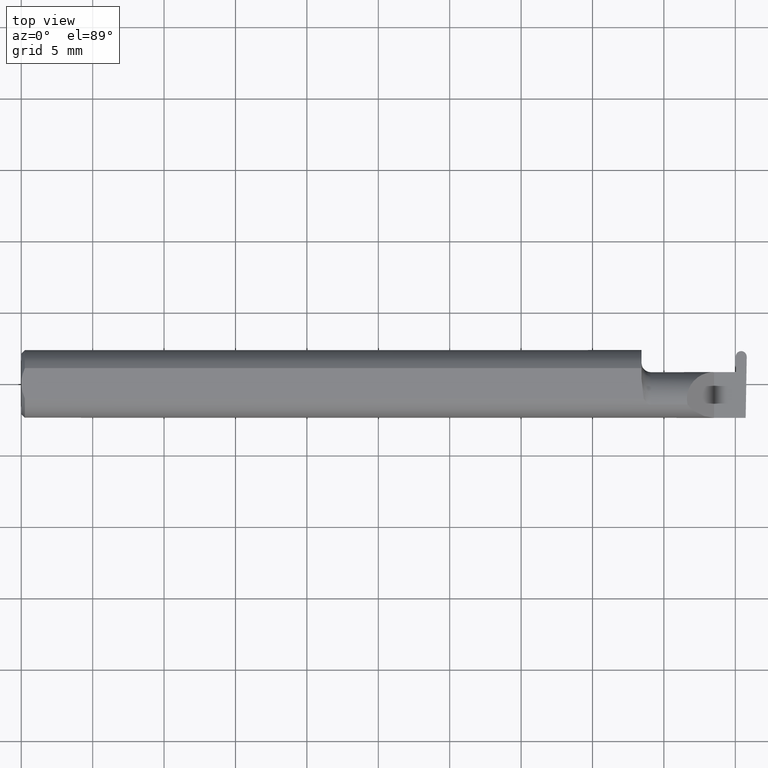
[diagram: clean part render]
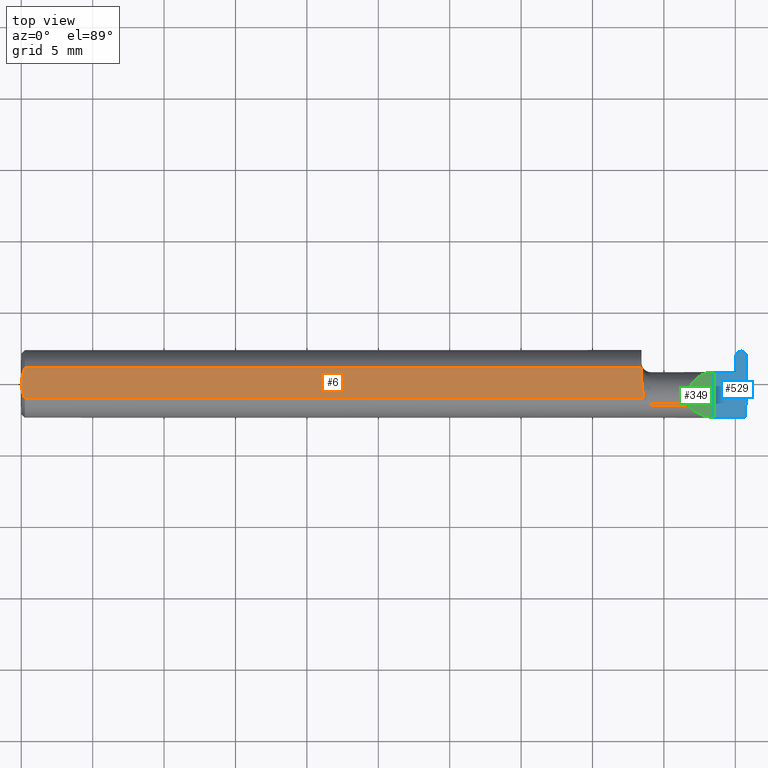
[diagram: same view with three faces highlighted in distinct colors, each labeled with its STEP entity id]
A machine part, top view with three faces highlighted in distinct colors.
Their STEP definitions:

[orange] entity #6 — the highlighted planar face has unit normal (0, 0, 1).
#3 = CARTESIAN_POINT ( 'NONE',  ( 1.709999999999999964, 0.04209513035969864037, 0.08359999999999988274 ) ) ;
#6 = ADVANCED_FACE ( 'NONE', ( #462 ), #147, .T. ) ;
#10 = CARTESIAN_POINT ( 'NONE',  ( 0.01000000000000016674, 0.04209513035969864037, 0.08359999999999988274 ) ) ;
#15 = CARTESIAN_POINT ( 'NONE',  ( 0.000000000000000000, -0.04209513035969864037, 0.08359999999999988274 ) ) ;
#16 = CARTESIAN_POINT ( 'NONE',  ( 0.01000000000000016674, -0.04209513035969864037, 0.08359999999999988274 ) ) ;
#18 = CARTESIAN_POINT ( 'NONE',  ( 1.714570820222980574, -0.02392027542784315106, 0.08359999999999992437 ) ) ;
#28 = ORIENTED_EDGE ( 'NONE', *, *, #610, .T. ) ;
#30 = DIRECTION ( 'NONE',  ( 0.000000000000000000, 0.000000000000000000, 1.000000000000000000 ) ) ;
#38 = VERTEX_POINT ( 'NONE', #403 ) ;
#69 = B_SPLINE_CURVE_WITH_KNOTS ( 'NONE', 3,
 ( #228, #596, #608, #402, #652, #286 ),
 .UNSPECIFIED., .F., .F.,
 ( 4, 2, 4 ),
 ( 0.001744210492668864416, 0.002295110172257193264, 0.002846009851845522111 ),
 .UNSPECIFIED. ) ;
#75 = B_SPLINE_CURVE_WITH_KNOTS ( 'NONE', 3,
 ( #339, #274, #18, #270, #449, #231 ),
 .UNSPECIFIED., .F., .F.,
 ( 4, 2, 4 ),
 ( 0.009672910729349544143, 0.01035804079918431486, 0.01104317086901908385 ),
 .UNSPECIFIED. ) ;
#78 = CARTESIAN_POINT ( 'NONE',  ( 0.004072204388638868758, -0.02891446873729324601, 0.08359999999999991049 ) ) ;
#81 = EDGE_CURVE ( 'NONE', #38, #535, #87, .T. ) ;
#87 = LINE ( 'NONE', #197, #660 ) ;
#143 = CARTESIAN_POINT ( 'NONE',  ( 0.000000000000000000, 0.000000000000000000, 0.08359999999999991049 ) ) ;
#147 = PLANE ( 'NONE',  #263 ) ;
#149 = VERTEX_POINT ( 'NONE', #372 ) ;
#186 = DIRECTION ( 'NONE',  ( 1.000000000000000000, 0.000000000000000000, -0.000000000000000000 ) ) ;
#191 = ORIENTED_EDGE ( 'NONE', *, *, #670, .F. ) ;
#197 = CARTESIAN_POINT ( 'NONE',  ( 1.709999999999999964, 0.09359999999999997489, 0.08359999999999991049 ) ) ;
#201 = VECTOR ( 'NONE', #275, 39.37007874015748143 ) ;
#203 = ORIENTED_EDGE ( 'NONE', *, *, #249, .T. ) ;
#228 = CARTESIAN_POINT ( 'NONE',  ( 0.000000000000000000, 0.000000000000000000, 0.08359999999999991049 ) ) ;
#231 = CARTESIAN_POINT ( 'NONE',  ( 1.709999999999999964, 0.01227294415283377085, 0.08359999999999991049 ) ) ;
#237 = VERTEX_POINT ( 'NONE', #16 ) ;
#249 = EDGE_CURVE ( 'NONE', #535, #631, #450, .T. ) ;
#263 = AXIS2_PLACEMENT_3D ( 'NONE', #569, #30, #186 ) ;
#270 = CARTESIAN_POINT ( 'NONE',  ( 1.711463898467977307, -0.005727447913487191365, 0.08359999999999991049 ) ) ;
#274 = CARTESIAN_POINT ( 'NONE',  ( 1.716082007218903582, -0.03301619840524120525, 0.08359999999999991049 ) ) ;
#275 = DIRECTION ( 'NONE',  ( -1.000000000000000000, -0.000000000000000000, -0.000000000000000000 ) ) ;
#286 = CARTESIAN_POINT ( 'NONE',  ( 0.01000000000000016674, 0.04209513035969864037, 0.08359999999999988274 ) ) ;
#294 = DIRECTION ( 'NONE',  ( -1.645101957906638708E-16, 1.000000000000000000, 0.000000000000000000 ) ) ;
#300 = ORIENTED_EDGE ( 'NONE', *, *, #665, .F. ) ;
#332 = VECTOR ( 'NONE', #393, 39.37007874015748143 ) ;
#339 = CARTESIAN_POINT ( 'NONE',  ( 1.716129652885479473, -0.04209513035970119388, 0.08359999999999991049 ) ) ;
#342 = CARTESIAN_POINT ( 'NONE',  ( 0.01000000000000016674, -0.04209513035969864037, 0.08359999999999988274 ) ) ;
#357 = B_SPLINE_CURVE_WITH_KNOTS ( 'NONE', 3,
 ( #342, #78, #458, #667 ),
 .UNSPECIFIED., .F., .F.,
 ( 4, 4 ),
 ( 0.0006429768761302093617, 0.001744210492668864416 ),
 .UNSPECIFIED. ) ;
#360 = ORIENTED_EDGE ( 'NONE', *, *, #81, .T. ) ;
#372 = CARTESIAN_POINT ( 'NONE',  ( 1.716129652885479473, -0.04209513035970119388, 0.08359999999999991049 ) ) ;
#373 = VERTEX_POINT ( 'NONE', #143 ) ;
#384 = CARTESIAN_POINT ( 'NONE',  ( 0.000000000000000000, 0.04209513035969864037, 0.08359999999999988274 ) ) ;
#393 = DIRECTION ( 'NONE',  ( 1.000000000000000000, 0.000000000000000000, 0.000000000000000000 ) ) ;
#402 = CARTESIAN_POINT ( 'NONE',  ( 0.004492168231814808177, 0.02859366993844194779, 0.08359999999999991049 ) ) ;
#403 = CARTESIAN_POINT ( 'NONE',  ( 1.709999999999999964, 0.01227294415283377085, 0.08359999999999991049 ) ) ;
#407 = EDGE_LOOP ( 'NONE', ( #552, #28, #360, #203, #191, #300 ) ) ;
#449 = CARTESIAN_POINT ( 'NONE',  ( 1.709999999999999964, 0.003280657920457339012, 0.08359999999999991049 ) ) ;
#450 = LINE ( 'NONE', #384, #201 ) ;
#458 = CARTESIAN_POINT ( 'NONE',  ( 2.387527623501553705E-17, -0.01462709520273675068, 0.08359999999999991049 ) ) ;
#462 = FACE_OUTER_BOUND ( 'NONE', #407, .T. ) ;
#497 = LINE ( 'NONE', #15, #332 ) ;
#535 = VERTEX_POINT ( 'NONE', #3 ) ;
#552 = ORIENTED_EDGE ( 'NONE', *, *, #632, .T. ) ;
#569 = CARTESIAN_POINT ( 'NONE',  ( 2.191425808082400728, 0.09360000000000005815, 0.08359999999999991049 ) ) ;
#596 = CARTESIAN_POINT ( 'NONE',  ( 2.476070721796526867E-17, 0.007317304829308955878, 0.08359999999999991049 ) ) ;
#608 = CARTESIAN_POINT ( 'NONE',  ( 0.0009807498324118613890, 0.01453516766257752398, 0.08359999999999992437 ) ) ;
#610 = EDGE_CURVE ( 'NONE', #149, #38, #75, .T. ) ;
#631 = VERTEX_POINT ( 'NONE', #10 ) ;
#632 = EDGE_CURVE ( 'NONE', #237, #149, #497, .T. ) ;
#652 = CARTESIAN_POINT ( 'NONE',  ( 0.007036739039485840133, 0.03550621559607060329, 0.08359999999999991049 ) ) ;
#660 = VECTOR ( 'NONE', #294, 39.37007874015748143 ) ;
#665 = EDGE_CURVE ( 'NONE', #237, #373, #357, .T. ) ;
#667 = CARTESIAN_POINT ( 'NONE',  ( 0.000000000000000000, 0.000000000000000000, 0.08359999999999991049 ) ) ;
#670 = EDGE_CURVE ( 'NONE', #373, #631, #69, .T. ) ;

[blue] entity #529 — the highlighted planar face has unit normal (-0, 0, -1).
#1 = CARTESIAN_POINT ( 'NONE',  ( 1.984528753945016932, 0.09039999999999999425, 0.000000000000000000 ) ) ;
#4 = CARTESIAN_POINT ( 'NONE',  ( 1.969483699970306922, 0.07409901316683066563, 0.000000000000000000 ) ) ;
#22 = LINE ( 'NONE', #503, #505 ) ;
#36 = CARTESIAN_POINT ( 'NONE',  ( 1.709999999999999964, 0.03239999999999998437, 3.551475717527338624E-17 ) ) ;
#40 = VERTEX_POINT ( 'NONE', #527 ) ;
#45 =( BOUNDED_CURVE ( )  B_SPLINE_CURVE ( 3, ( #298, #252, #413, #194 ),
 .UNSPECIFIED., .F., .T. ) 
 B_SPLINE_CURVE_WITH_KNOTS ( ( 4, 4 ),
 ( 1.672436806532649367, 3.247686724355375087 ),
 .UNSPECIFIED. ) 
 CURVE ( )  GEOMETRIC_REPRESENTATION_ITEM ( )  RATIONAL_B_SPLINE_CURVE ( ( 1.000000000000000000, 0.8036869647627066238, 0.8036869647627066238, 1.000000000000000000 ) ) 
 REPRESENTATION_ITEM ( '' )  );
#63 = EDGE_CURVE ( 'NONE', #541, #618, #140, .T. ) ;
#86 = DIRECTION ( 'NONE',  ( -0.01745240643727633684, -0.9998476951563912696, 0.000000000000000000 ) ) ;
#105 = DIRECTION ( 'NONE',  ( -1.000000000000000000, 0.000000000000000000, 1.224646799147358877E-16 ) ) ;
#140 = LINE ( 'NONE', #562, #452 ) ;
#144 = DIRECTION ( 'NONE',  ( 1.000000000000000000, -0.000000000000000000, -0.000000000000000000 ) ) ;
#146 = DIRECTION ( 'NONE',  ( 1.000000000000000000, 1.645101957906638708E-16, 0.000000000000000000 ) ) ;
#151 = ORIENTED_EDGE ( 'NONE', *, *, #442, .F. ) ;
#157 = LINE ( 'NONE', #536, #475 ) ;
#159 = CARTESIAN_POINT ( 'NONE',  ( 1.970211558952576159, 0.03239999999999999825, 0.000000000000000000 ) ) ;
#168 = EDGE_CURVE ( 'NONE', #210, #40, #214, .T. ) ;
#172 = EDGE_CURVE ( 'NONE', #541, #304, #643, .T. ) ;
#173 = DIRECTION ( 'NONE',  ( -0.000000000000000000, 1.000000000000000000, -0.000000000000000000 ) ) ;
#181 = ORIENTED_EDGE ( 'NONE', *, *, #386, .T. ) ;
#194 = CARTESIAN_POINT ( 'NONE',  ( 1.984939206054983751, 0.09039999999999999425, 0.000000000000000000 ) ) ;
#208 = DIRECTION ( 'NONE',  ( -0.01745240643727647215, 0.9998476951563912696, -0.000000000000000000 ) ) ;
#210 = VERTEX_POINT ( 'NONE', #692 ) ;
#214 = LINE ( 'NONE', #159, #320 ) ;
#247 = FACE_OUTER_BOUND ( 'NONE', #482, .T. ) ;
#252 = CARTESIAN_POINT ( 'NONE',  ( 2.000150782537319483, 0.08363908123938845751, -1.889248031255481802E-18 ) ) ;
#255 = DIRECTION ( 'NONE',  ( -1.224646799147358877E-16, 0.000000000000000000, -1.000000000000000000 ) ) ;
#262 = ORIENTED_EDGE ( 'NONE', *, *, #401, .F. ) ;
#273 = VECTOR ( 'NONE', #146, 39.37007874015748143 ) ;
#281 = CARTESIAN_POINT ( 'NONE',  ( 1.984939206054983751, 0.09039999999999999425, 0.000000000000000000 ) ) ;
#283 = AXIS2_PLACEMENT_3D ( 'NONE', #306, #255, #105 ) ;
#284 = VERTEX_POINT ( 'NONE', #340 ) ;
#288 = VERTEX_POINT ( 'NONE', #597 ) ;
#295 = CARTESIAN_POINT ( 'NONE',  ( 2.999519565323742037E-32, -0.09359999999999998876, 2.449293598294716768E-16 ) ) ;
#298 = CARTESIAN_POINT ( 'NONE',  ( 1.999984260029693539, 0.07409901316683065176, 0.000000000000000000 ) ) ;
#304 = VERTEX_POINT ( 'NONE', #329 ) ;
#306 = CARTESIAN_POINT ( 'NONE',  ( 2.000000000000000000, -0.2500000000000000555, 0.000000000000000000 ) ) ;
#320 = VECTOR ( 'NONE', #427, 39.37007874015748143 ) ;
#329 = CARTESIAN_POINT ( 'NONE',  ( 1.969483699970306922, 0.07409901316683066563, 0.000000000000000000 ) ) ;
#340 = CARTESIAN_POINT ( 'NONE',  ( 1.997057062866469668, -0.09360000000000001652, 0.000000000000000000 ) ) ;
#352 = DIRECTION ( 'NONE',  ( -1.000000000000000000, -0.000000000000000000, -0.000000000000000000 ) ) ;
#368 = ORIENTED_EDGE ( 'NONE', *, *, #647, .F. ) ;
#386 = EDGE_CURVE ( 'NONE', #395, #618, #45, .T. ) ;
#395 = VERTEX_POINT ( 'NONE', #518 ) ;
#401 = EDGE_CURVE ( 'NONE', #284, #698, #524, .T. ) ;
#409 = LINE ( 'NONE', #36, #273 ) ;
#413 = CARTESIAN_POINT ( 'NONE',  ( 1.993910768437985759, 0.09039999999999996649, -1.125066701917155339E-18 ) ) ;
#418 = EDGE_CURVE ( 'NONE', #288, #210, #409, .T. ) ;
#427 = DIRECTION ( 'NONE',  ( 1.000000000000000000, 7.099522513569870101E-16, -0.000000000000000000 ) ) ;
#431 = CARTESIAN_POINT ( 'NONE',  ( 1.975557191562014703, 0.09039999999999998037, 1.125066701917154376E-18 ) ) ;
#434 = CARTESIAN_POINT ( 'NONE',  ( 1.984528753945016932, 0.09039999999999999425, 0.000000000000000000 ) ) ;
#442 = EDGE_CURVE ( 'NONE', #395, #284, #572, .T. ) ;
#452 = VECTOR ( 'NONE', #144, 39.37007874015748143 ) ;
#457 = ORIENTED_EDGE ( 'NONE', *, *, #63, .F. ) ;
#475 = VECTOR ( 'NONE', #208, 39.37007874015748143 ) ;
#482 = EDGE_LOOP ( 'NONE', ( #457, #695, #540, #513, #585, #368, #262, #151, #181 ) ) ;
#488 = CARTESIAN_POINT ( 'NONE',  ( 1.969317177462681423, 0.08363908123938847139, 1.889248031255481417E-18 ) ) ;
#503 = CARTESIAN_POINT ( 'NONE',  ( 1.910000000000000142, -0.2500000000000000555, 1.102182119232621301E-17 ) ) ;
#505 = VECTOR ( 'NONE', #173, 39.37007874015748143 ) ;
#513 = ORIENTED_EDGE ( 'NONE', *, *, #168, .F. ) ;
#518 = CARTESIAN_POINT ( 'NONE',  ( 1.999984260029693539, 0.07409901316683065176, 0.000000000000000000 ) ) ;
#520 = VECTOR ( 'NONE', #86, 39.37007874015748143 ) ;
#524 = LINE ( 'NONE', #295, #578 ) ;
#527 = CARTESIAN_POINT ( 'NONE',  ( 1.970211558952576159, 0.03239999999999999825, 0.000000000000000000 ) ) ;
#529 = ADVANCED_FACE ( 'NONE', ( #247 ), #682, .F. ) ;
#530 = EDGE_CURVE ( 'NONE', #40, #304, #157, .T. ) ;
#536 = CARTESIAN_POINT ( 'NONE',  ( 1.969470285088788852, 0.07486755121428030624, 0.000000000000000000 ) ) ;
#540 = ORIENTED_EDGE ( 'NONE', *, *, #530, .F. ) ;
#541 = VERTEX_POINT ( 'NONE', #434 ) ;
#562 = CARTESIAN_POINT ( 'NONE',  ( -3.937007874019685528E-05, 0.09039999999999999425, 0.000000000000000000 ) ) ;
#563 = CARTESIAN_POINT ( 'NONE',  ( 1.999997674911211609, 0.07486755121428030624, 0.000000000000000000 ) ) ;
#572 = LINE ( 'NONE', #563, #520 ) ;
#578 = VECTOR ( 'NONE', #352, 39.37007874015748143 ) ;
#585 = ORIENTED_EDGE ( 'NONE', *, *, #418, .F. ) ;
#597 = CARTESIAN_POINT ( 'NONE',  ( 1.910000000000000142, 0.03240000000000001906, 3.551475717527338624E-17 ) ) ;
#618 = VERTEX_POINT ( 'NONE', #281 ) ;
#643 =( BOUNDED_CURVE ( )  B_SPLINE_CURVE ( 3, ( #1, #431, #488, #4 ),
 .UNSPECIFIED., .F., .F. ) 
 B_SPLINE_CURVE_WITH_KNOTS ( ( 4, 4 ),
 ( 6.177091236414002928, 7.752341154236729537 ),
 .UNSPECIFIED. ) 
 CURVE ( )  GEOMETRIC_REPRESENTATION_ITEM ( )  RATIONAL_B_SPLINE_CURVE ( ( 1.000000000000000000, 0.8036869647627065127, 0.8036869647627065127, 1.000000000000000000 ) ) 
 REPRESENTATION_ITEM ( '' )  );
#647 = EDGE_CURVE ( 'NONE', #698, #288, #22, .T. ) ;
#675 = CARTESIAN_POINT ( 'NONE',  ( 1.910000000000000142, -0.09360000000000005815, 1.102182119232621301E-17 ) ) ;
#682 = PLANE ( 'NONE',  #283 ) ;
#692 = CARTESIAN_POINT ( 'NONE',  ( 1.964199165186739648, 0.03239999999999999825, 0.000000000000000000 ) ) ;
#695 = ORIENTED_EDGE ( 'NONE', *, *, #172, .T. ) ;
#698 = VERTEX_POINT ( 'NONE', #675 ) ;

[green] entity #349 — the highlighted planar face has unit normal (-0.7071, 0, -0.7071).
#7 = CARTESIAN_POINT ( 'NONE',  ( 1.910000000000000142, 0.03240000000000001906, 3.551475717527338624E-17 ) ) ;
#22 = LINE ( 'NONE', #503, #505 ) ;
#49 = ORIENTED_EDGE ( 'NONE', *, *, #213, .F. ) ;
#57 = CARTESIAN_POINT ( 'NONE',  ( 1.854690286057537163, -0.08092595952420827965, 0.05530971394246238931 ) ) ;
#68 = EDGE_LOOP ( 'NONE', ( #98, #49, #487 ) ) ;
#77 = VERTEX_POINT ( 'NONE', #564 ) ;
#98 = ORIENTED_EDGE ( 'NONE', *, *, #217, .F. ) ;
#118 = CARTESIAN_POINT ( 'NONE',  ( 1.858433946715231766, 0.03240000000000000518, 0.05156605328476855654 ) ) ;
#126 = AXIS2_PLACEMENT_3D ( 'NONE', #609, #343, #556 ) ;
#173 = DIRECTION ( 'NONE',  ( -0.000000000000000000, 1.000000000000000000, -0.000000000000000000 ) ) ;
#176 = FACE_OUTER_BOUND ( 'NONE', #68, .T. ) ;
#211 = CARTESIAN_POINT ( 'NONE',  ( 1.836620632051321200, -0.05810704225352119473, 0.07337936794867828960 ) ) ;
#213 = EDGE_CURVE ( 'NONE', #698, #77, #586, .T. ) ;
#217 = EDGE_CURVE ( 'NONE', #77, #288, #669, .T. ) ;
#219 = CARTESIAN_POINT ( 'NONE',  ( 1.836620632051321200, -0.05810704225352119473, 0.07337936794867828960 ) ) ;
#288 = VERTEX_POINT ( 'NONE', #597 ) ;
#343 = DIRECTION ( 'NONE',  ( -0.7071067811865442421, 0.000000000000000000, -0.7071067811865509034 ) ) ;
#349 = ADVANCED_FACE ( 'NONE', ( #176 ), #390, .F. ) ;
#390 = PLANE ( 'NONE',  #126 ) ;
#422 = CARTESIAN_POINT ( 'NONE',  ( 1.910000000000000142, -0.09360000000000005815, 1.102182119232621301E-17 ) ) ;
#487 = ORIENTED_EDGE ( 'NONE', *, *, #647, .T. ) ;
#491 = CARTESIAN_POINT ( 'NONE',  ( 1.825958805822864628, -0.007655250284932180876, 0.08404119417713473705 ) ) ;
#503 = CARTESIAN_POINT ( 'NONE',  ( 1.910000000000000142, -0.2500000000000000555, 1.102182119232621301E-17 ) ) ;
#505 = VECTOR ( 'NONE', #173, 39.37007874015748143 ) ;
#556 = DIRECTION ( 'NONE',  ( -0.7071067811865507924, 0.000000000000000000, 0.7071067811865441310 ) ) ;
#564 = CARTESIAN_POINT ( 'NONE',  ( 1.836620632051321200, -0.05810704225352119473, 0.07337936794867828960 ) ) ;
#586 =( BOUNDED_CURVE ( )  B_SPLINE_CURVE ( 3, ( #422, #633, #57, #211 ),
 .UNSPECIFIED., .F., .T. ) 
 B_SPLINE_CURVE_WITH_KNOTS ( ( 4, 4 ),
 ( 4.712388980384689674, 5.613420356061718408 ),
 .UNSPECIFIED. ) 
 CURVE ( )  GEOMETRIC_REPRESENTATION_ITEM ( )  RATIONAL_B_SPLINE_CURVE ( ( 1.000000000000000000, 0.9334817841311876530, 0.9334817841311876530, 1.000000000000000000 ) ) 
 REPRESENTATION_ITEM ( '' )  );
#597 = CARTESIAN_POINT ( 'NONE',  ( 1.910000000000000142, 0.03240000000000001906, 3.551475717527338624E-17 ) ) ;
#609 = CARTESIAN_POINT ( 'NONE',  ( 1.910000000000000142, -0.2500000000000000555, 1.102182119232621301E-17 ) ) ;
#633 = CARTESIAN_POINT ( 'NONE',  ( 1.880893035518783396, -0.09360000000000001652, 0.02910696448121676688 ) ) ;
#647 = EDGE_CURVE ( 'NONE', #698, #288, #22, .T. ) ;
#669 =( BOUNDED_CURVE ( )  B_SPLINE_CURVE ( 3, ( #219, #491, #118, #7 ),
 .UNSPECIFIED., .F., .T. ) 
 B_SPLINE_CURVE_WITH_KNOTS ( ( 4, 4 ),
 ( 6.074922494366329140, 7.853981633974482790 ),
 .UNSPECIFIED. ) 
 CURVE ( )  GEOMETRIC_REPRESENTATION_ITEM ( )  RATIONAL_B_SPLINE_CURVE ( ( 1.000000000000000000, 0.7531850099525143616, 0.7531850099525143616, 1.000000000000000000 ) ) 
 REPRESENTATION_ITEM ( '' )  );
#675 = CARTESIAN_POINT ( 'NONE',  ( 1.910000000000000142, -0.09360000000000005815, 1.102182119232621301E-17 ) ) ;
#698 = VERTEX_POINT ( 'NONE', #675 ) ;